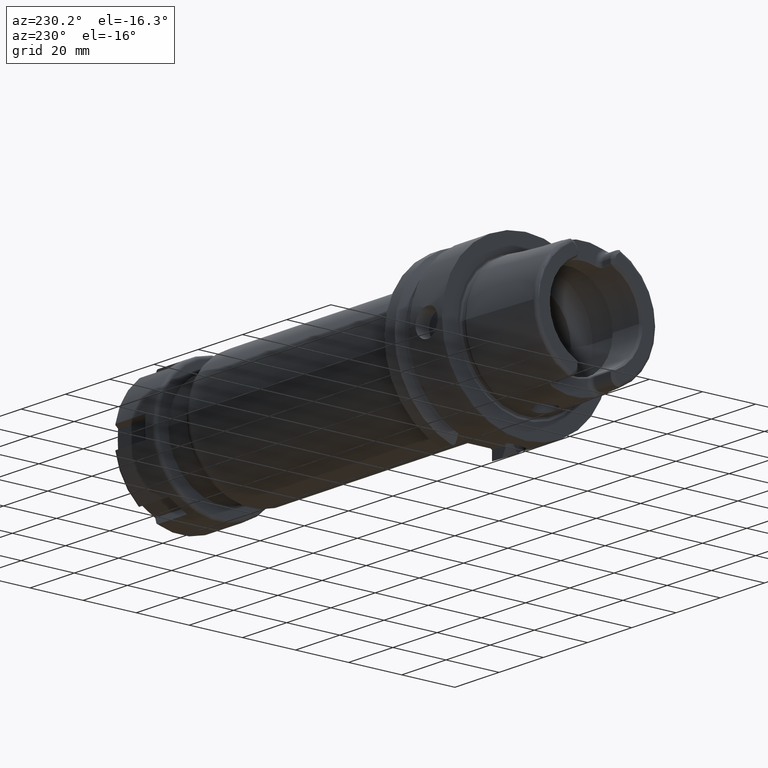
[diagram: clean part render]
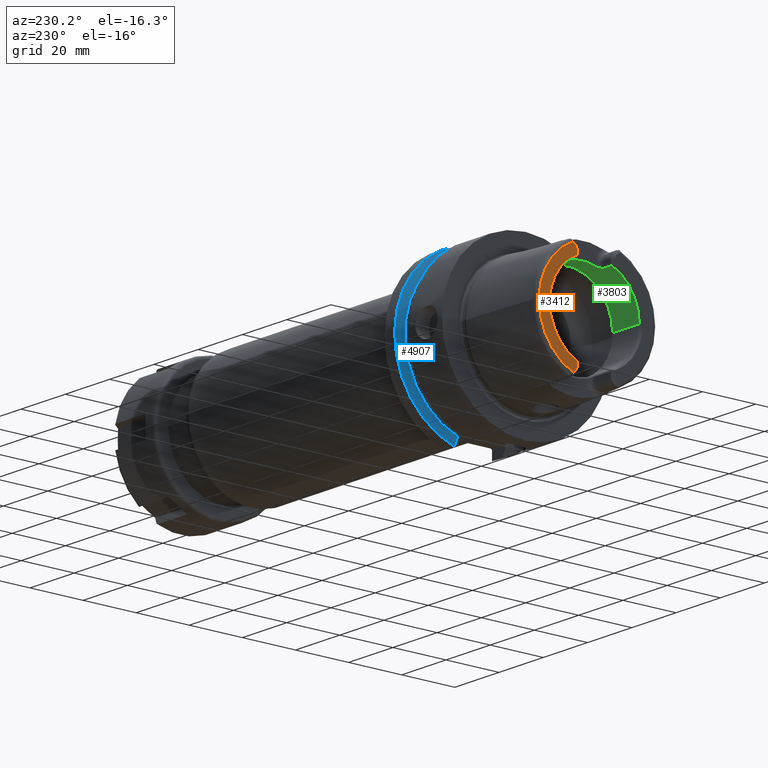
[diagram: same view with three faces highlighted in distinct colors, each labeled with its STEP entity id]
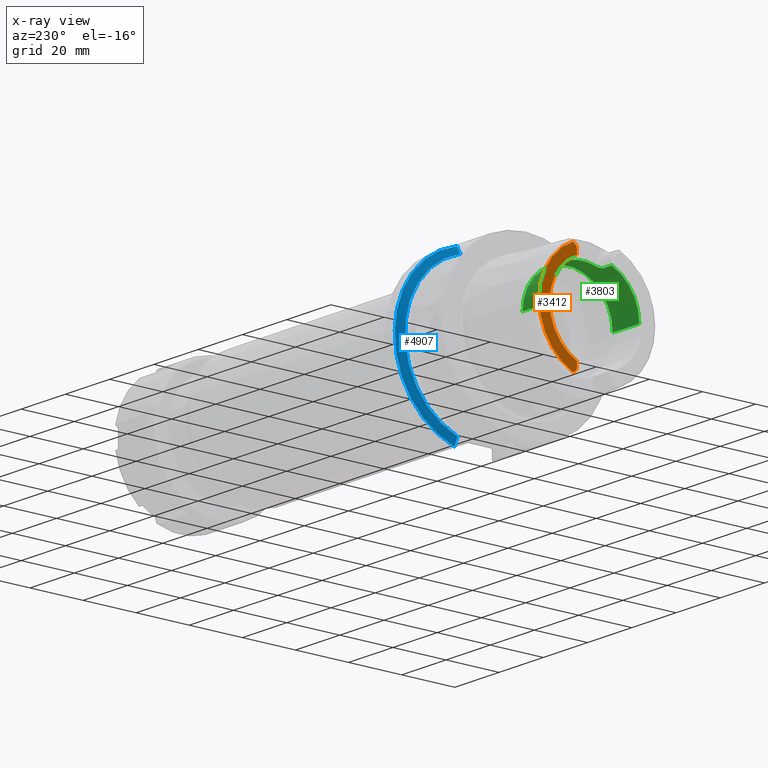
[diagram: x-ray of the same camera — body ghosted, the three highlighted faces saturated]
A machine part, auxiliary view with three faces highlighted in distinct colors.
The next image is the same camera in x-ray (body ghosted, the three faces saturated) — at least one of them is partly hidden behind the body in this view.
Their STEP definitions:

[orange] entity #3412 — the highlighted planar face has unit normal (1, 0, 0).
#215=CARTESIAN_POINT('',(-3.2E1,0.E0,0.E0));
#216=DIRECTION('',(-1.E0,0.E0,0.E0));
#217=DIRECTION('',(0.E0,4.056746540583E-1,9.140175463604E-1));
#218=AXIS2_PLACEMENT_3D('',#215,#216,#217);
#289=DIRECTION('',(0.E0,0.E0,1.E0));
#290=VECTOR('',#289,1.666552168805E0);
#291=CARTESIAN_POINT('',(-3.2E1,7.27E0,-1.767E1));
#292=LINE('',#291,#290);
#293=CARTESIAN_POINT('',(-3.2E1,9.27E0,-1.767E1));
#294=DIRECTION('',(1.E0,0.E0,0.E0));
#295=DIRECTION('',(0.E0,-1.E0,0.E0));
#296=AXIS2_PLACEMENT_3D('',#293,#294,#295);
#298=DIRECTION('',(0.E0,-8.373245684230E-1,5.467061067112E-1));
#299=VECTOR('',#298,6.882400885956E-1);
#300=CARTESIAN_POINT('',(-3.2E1,8.752868121732E0,-1.972091419616E1));
#301=LINE('',#300,#299);
#302=DIRECTION('',(0.E0,-8.373245684230E-1,-5.467061067112E-1));
#303=VECTOR('',#302,6.882400885957E-1);
#304=CARTESIAN_POINT('',(-3.2E1,8.752868121732E0,1.972091419616E1));
#305=LINE('',#304,#303);
#306=CARTESIAN_POINT('',(-3.2E1,9.27E0,1.767E1));
#307=DIRECTION('',(-1.E0,0.E0,0.E0));
#308=DIRECTION('',(0.E0,-1.E0,0.E0));
#309=AXIS2_PLACEMENT_3D('',#306,#307,#308);
#311=DIRECTION('',(0.E0,0.E0,1.E0));
#312=VECTOR('',#311,1.666552168805E0);
#313=CARTESIAN_POINT('',(-3.2E1,7.27E0,1.600344783120E1));
#314=LINE('',#313,#312);
#346=CARTESIAN_POINT('',(-3.2E1,0.E0,0.E0));
#347=DIRECTION('',(1.E0,0.E0,0.E0));
#348=DIRECTION('',(0.E0,4.136004510727E-1,-9.104584926686E-1));
#349=AXIS2_PLACEMENT_3D('',#346,#347,#348);
#2798=CARTESIAN_POINT('',(-3.2E1,7.27E0,1.600344783120E1));
#2799=CARTESIAN_POINT('',(-3.2E1,7.27E0,1.767E1));
#2800=VERTEX_POINT('',#2798);
#2801=VERTEX_POINT('',#2799);
#2802=CARTESIAN_POINT('',(-3.2E1,8.176587786578E0,1.934464913685E1));
#2803=VERTEX_POINT('',#2802);
#2804=CARTESIAN_POINT('',(-3.2E1,8.752868121732E0,1.972091419616E1));
#2805=VERTEX_POINT('',#2804);
#2894=CARTESIAN_POINT('',(-3.2E1,7.27E0,-1.767E1));
#2895=CARTESIAN_POINT('',(-3.2E1,7.27E0,-1.600344783120E1));
#2896=VERTEX_POINT('',#2894);
#2897=VERTEX_POINT('',#2895);
#2898=CARTESIAN_POINT('',(-3.2E1,8.176587786578E0,-1.934464913685E1));
#2899=VERTEX_POINT('',#2898);
#2900=CARTESIAN_POINT('',(-3.2E1,8.752868121732E0,-1.972091419616E1));
#2901=VERTEX_POINT('',#2900);
#3391=CARTESIAN_POINT('',(-3.2E1,0.E0,0.E0));
#3392=DIRECTION('',(1.E0,0.E0,0.E0));
#3393=DIRECTION('',(0.E0,-1.E0,0.E0));
#3394=AXIS2_PLACEMENT_3D('',#3391,#3392,#3393);
#3395=PLANE('',#3394);
#3397=ORIENTED_EDGE('',*,*,#3396,.F.);
#3399=ORIENTED_EDGE('',*,*,#3398,.T.);
#3400=ORIENTED_EDGE('',*,*,#3381,.F.);
#3401=ORIENTED_EDGE('',*,*,#3348,.F.);
#3403=ORIENTED_EDGE('',*,*,#3402,.T.);
#3405=ORIENTED_EDGE('',*,*,#3404,.F.);
#3407=ORIENTED_EDGE('',*,*,#3406,.F.);
#3409=ORIENTED_EDGE('',*,*,#3408,.F.);
#3410=EDGE_LOOP('',(#3397,#3399,#3400,#3401,#3403,#3405,#3407,#3409));
#3411=FACE_OUTER_BOUND('',#3410,.F.);
#3412=ADVANCED_FACE('',(#3411),#3395,.F.);
#219=CIRCLE('',#218,2.157607835286E1);
#297=CIRCLE('',#296,2.E0);
#310=CIRCLE('',#309,2.E0);
#350=CIRCLE('',#349,1.757735026919E1);
#3348=EDGE_CURVE('',#2805,#2901,#219,.T.);
#3381=EDGE_CURVE('',#2901,#2899,#301,.T.);
#3396=EDGE_CURVE('',#2896,#2897,#292,.T.);
#3398=EDGE_CURVE('',#2896,#2899,#297,.T.);
#3402=EDGE_CURVE('',#2805,#2803,#305,.T.);
#3404=EDGE_CURVE('',#2801,#2803,#310,.T.);
#3406=EDGE_CURVE('',#2800,#2801,#314,.T.);
#3408=EDGE_CURVE('',#2897,#2800,#350,.T.);

[blue] entity #4907 — the highlighted conical surface has half-angle 60 deg.
#1601=CARTESIAN_POINT('',(2.137749907476E1,9.0175E0,-3.018169467989E1));
#1602=CARTESIAN_POINT('',(2.120260671566E1,9.0175E0,-2.986554088755E1));
#1603=CARTESIAN_POINT('',(2.085812292499E1,9.0175E0,-2.924200119110E1));
#1604=CARTESIAN_POINT('',(2.035750942268E1,9.0175E0,-2.833337204728E1));
#1605=CARTESIAN_POINT('',(2.003409260855E1,9.0175E0,-2.774465116011E1));
#1606=CARTESIAN_POINT('',(1.9875E1,9.0175E0,-2.745461174016E1));
#1608=CARTESIAN_POINT('',(2.137749907476E1,0.E0,0.E0));
#1609=DIRECTION('',(1.E0,0.E0,0.E0));
#1610=DIRECTION('',(0.E0,2.862698412698E-1,-9.581490374568E-1));
#1611=AXIS2_PLACEMENT_3D('',#1608,#1609,#1610);
#1613=CARTESIAN_POINT('',(1.9875E1,8.0175E0,2.776311772483E1));
#1614=CARTESIAN_POINT('',(2.003456921596E1,8.0175E0,2.805079344433E1));
#1615=CARTESIAN_POINT('',(2.035862308375E1,8.0175E0,2.863431787984E1));
#1616=CARTESIAN_POINT('',(2.085926872163E1,8.0175E0,2.953380309393E1));
#1617=CARTESIAN_POINT('',(2.120309833211E1,8.0175E0,3.015023700722E1));
#1618=CARTESIAN_POINT('',(2.137749907476E1,8.0175E0,3.046259499370E1));
#1620=CARTESIAN_POINT('',(1.9875E1,0.E0,0.E0));
#1621=DIRECTION('',(-1.E0,0.E0,0.E0));
#1622=DIRECTION('',(0.E0,2.774452312278E-1,9.607414551631E-1));
#1623=AXIS2_PLACEMENT_3D('',#1620,#1621,#1622);
#3082=CARTESIAN_POINT('',(1.9875E1,8.0175E0,2.776311772483E1));
#3083=VERTEX_POINT('',#3082);
#3085=VERTEX_POINT('',#1618);
#3106=CARTESIAN_POINT('',(1.9875E1,9.0175E0,-2.745461174016E1));
#3108=VERTEX_POINT('',#3106);
#3114=VERTEX_POINT('',#1601);
#4894=CARTESIAN_POINT('',(2.062624953738E1,0.E0,0.E0));
#4895=DIRECTION('',(1.E0,0.E0,0.E0));
#4896=DIRECTION('',(0.E0,-1.E0,0.E0));
#4897=AXIS2_PLACEMENT_3D('',#4894,#4895,#4896);
#4898=CONICAL_SURFACE('',#4897,3.019879763210E1,6.E1);
#4899=ORIENTED_EDGE('',*,*,#4607,.F.);
#4901=ORIENTED_EDGE('',*,*,#4900,.T.);
#4903=ORIENTED_EDGE('',*,*,#4902,.F.);
#4904=ORIENTED_EDGE('',*,*,#4857,.T.);
#4905=EDGE_LOOP('',(#4899,#4901,#4903,#4904));
#4906=FACE_OUTER_BOUND('',#4905,.F.);
#4907=ADVANCED_FACE('',(#4906),#4898,.T.);
#1607=B_SPLINE_CURVE_WITH_KNOTS('',3,(#1601,#1602,#1603,#1604,#1605,#1606),
.UNSPECIFIED.,.F.,.F.,(4,1,1,4),(0.E0,3.333333333333E-1,6.666666666667E-1,1.E0),
.UNSPECIFIED.);
#1612=CIRCLE('',#1611,3.15E1);
#1619=B_SPLINE_CURVE_WITH_KNOTS('',3,(#1613,#1614,#1615,#1616,#1617,#1618),
.UNSPECIFIED.,.F.,.F.,(4,1,1,4),(0.E0,3.333333333333E-1,6.666666666667E-1,1.E0),
.UNSPECIFIED.);
#1624=CIRCLE('',#1623,2.889759526419E1);
#4607=EDGE_CURVE('',#3114,#3108,#1607,.T.);
#4857=EDGE_CURVE('',#3083,#3108,#1624,.T.);
#4900=EDGE_CURVE('',#3114,#3085,#1612,.T.);
#4902=EDGE_CURVE('',#3083,#3085,#1619,.T.);

[green] entity #3803 — the highlighted cylindrical surface (partial cylindrical patch) has radius 17 mm, axis along (1, 0, 0).
#362=CARTESIAN_POINT('',(-3.1E1,0.E0,0.E0));
#363=DIRECTION('',(1.E0,0.E0,0.E0));
#364=DIRECTION('',(0.E0,1.E0,0.E0));
#365=AXIS2_PLACEMENT_3D('',#362,#363,#364);
#394=CARTESIAN_POINT('',(-3.1E1,0.E0,0.E0));
#395=DIRECTION('',(1.E0,0.E0,0.E0));
#396=DIRECTION('',(0.E0,-3.910839598454E-1,9.203550056102E-1));
#397=AXIS2_PLACEMENT_3D('',#394,#395,#396);
#559=DIRECTION('',(1.E0,0.E0,0.E0));
#560=VECTOR('',#559,3.5E0);
#561=CARTESIAN_POINT('',(-3.1E1,6.648427317371E0,1.564603509537E1));
#562=LINE('',#561,#560);
#563=CARTESIAN_POINT('',(-2.571132486541E1,4.77E0,1.631708000838E1));
#564=CARTESIAN_POINT('',(-2.570911463045E1,4.851899929325E0,1.629313806150E1));
#565=CARTESIAN_POINT('',(-2.571539985496E1,5.014300274441E0,1.624433189365E1));
#566=CARTESIAN_POINT('',(-2.575723226820E1,5.255574737127E0,1.616786516493E1));
#567=CARTESIAN_POINT('',(-2.583019759937E1,5.488813832187E0,1.609012650164E1));
#568=CARTESIAN_POINT('',(-2.593222755914E1,5.709311810621E0,1.601314455534E1));
#569=CARTESIAN_POINT('',(-2.606208908479E1,5.913640570765E0,1.593873381343E1));
#570=CARTESIAN_POINT('',(-2.621579663552E1,6.097621457296E0,1.586916363348E1));
#571=CARTESIAN_POINT('',(-2.639004084082E1,6.257927374534E0,1.580654307494E1));
#572=CARTESIAN_POINT('',(-2.658287946713E1,6.394281114327E0,1.575179653388E1));
#573=CARTESIAN_POINT('',(-2.679414325254E1,6.504885265694E0,1.570637036291E1));
#574=CARTESIAN_POINT('',(-2.702072491693E1,6.586740689310E0,1.567215753589E1));
#575=CARTESIAN_POINT('',(-2.725841410654E1,6.637201205541E0,1.565081274977E1));
#576=CARTESIAN_POINT('',(-2.741884128981E1,6.648427317371E0,1.564603509537E1));
#577=CARTESIAN_POINT('',(-2.75E1,6.648427317371E0,1.564603509537E1));
#579=CARTESIAN_POINT('',(-2.571132486541E1,-4.77E0,1.631708000838E1));
#580=CARTESIAN_POINT('',(-2.571132486541E1,-4.151241293882E0,1.649796280277E1));
#581=CARTESIAN_POINT('',(-2.571132889067E1,-2.893125957956E0,1.678926713017E1));
#582=CARTESIAN_POINT('',(-2.571132738120E1,-9.685489423330E-1,
1.700915920873E1));
#583=CARTESIAN_POINT('',(-2.571132738120E1,9.685489423332E-1,1.700915920873E1));
#584=CARTESIAN_POINT('',(-2.571132889067E1,2.893125957955E0,1.678926713017E1));
#585=CARTESIAN_POINT('',(-2.571132486541E1,4.151241293884E0,1.649796280277E1));
#586=CARTESIAN_POINT('',(-2.571132486541E1,4.77E0,1.631708000838E1));
#588=CARTESIAN_POINT('',(-2.75E1,-6.648427317371E0,1.564603509537E1));
#589=CARTESIAN_POINT('',(-2.741886739757E1,-6.648427317371E0,1.564603509537E1));
#590=CARTESIAN_POINT('',(-2.725846026145E1,-6.637216591931E0,1.565080624648E1));
#591=CARTESIAN_POINT('',(-2.702047669465E1,-6.586680175792E0,1.567218311946E1));
#592=CARTESIAN_POINT('',(-2.679396033382E1,-6.504789416100E0,1.570640995358E1));
#593=CARTESIAN_POINT('',(-2.658322850975E1,-6.394447887183E0,1.575172726773E1));
#594=CARTESIAN_POINT('',(-2.639118887217E1,-6.258799446744E0,1.580619508840E1));
#595=CARTESIAN_POINT('',(-2.621738949273E1,-6.099242016698E0,1.586853752436E1));
#596=CARTESIAN_POINT('',(-2.606384631874E1,-5.916012648986E0,1.593785105703E1));
#597=CARTESIAN_POINT('',(-2.593366664869E1,-5.711955003317E0,1.601220141386E1));
#598=CARTESIAN_POINT('',(-2.583107108488E1,-5.491206341112E0,1.608931480424E1));
#599=CARTESIAN_POINT('',(-2.575746962839E1,-5.256749499660E0,1.616748882623E1));
#600=CARTESIAN_POINT('',(-2.571543732099E1,-5.014873021211E0,1.624415783103E1));
#601=CARTESIAN_POINT('',(-2.570911008721E1,-4.852068278437E0,1.629308884771E1));
#602=CARTESIAN_POINT('',(-2.571132486541E1,-4.77E0,1.631708000838E1));
#604=DIRECTION('',(1.E0,0.E0,0.E0));
#605=VECTOR('',#604,3.5E0);
#606=CARTESIAN_POINT('',(-3.1E1,-6.648427317371E0,1.564603509537E1));
#607=LINE('',#606,#605);
#608=CARTESIAN_POINT('',(-1.899602540378E1,0.E0,0.E0));
#609=DIRECTION('',(1.E0,0.E0,0.E0));
#610=DIRECTION('',(0.E0,1.E0,0.E0));
#611=AXIS2_PLACEMENT_3D('',#608,#609,#610);
#666=DIRECTION('',(-1.E0,0.E0,0.E0));
#667=VECTOR('',#666,1.200397459622E1);
#668=CARTESIAN_POINT('',(-1.899602540378E1,1.7E1,0.E0));
#669=LINE('',#668,#667);
#675=DIRECTION('',(-1.E0,0.E0,0.E0));
#676=VECTOR('',#675,1.200397459622E1);
#677=CARTESIAN_POINT('',(-1.899602540378E1,-1.7E1,0.E0));
#678=LINE('',#677,#676);
#2755=CARTESIAN_POINT('',(-1.899602540378E1,1.7E1,0.E0));
#2756=VERTEX_POINT('',#2755);
#2757=CARTESIAN_POINT('',(-3.1E1,1.7E1,0.E0));
#2758=VERTEX_POINT('',#2757);
#2767=CARTESIAN_POINT('',(-1.899602540378E1,-1.7E1,0.E0));
#2768=VERTEX_POINT('',#2767);
#2769=CARTESIAN_POINT('',(-3.1E1,-1.7E1,0.E0));
#2770=VERTEX_POINT('',#2769);
#2836=CARTESIAN_POINT('',(-2.75E1,6.648427317371E0,1.564603509537E1));
#2837=VERTEX_POINT('',#2836);
#2838=CARTESIAN_POINT('',(-2.571132486541E1,4.77E0,1.631708000838E1));
#2839=VERTEX_POINT('',#2838);
#2840=CARTESIAN_POINT('',(-2.75E1,-6.648427317371E0,1.564603509537E1));
#2841=VERTEX_POINT('',#2840);
#2842=CARTESIAN_POINT('',(-2.571132486541E1,-4.77E0,1.631708000838E1));
#2843=VERTEX_POINT('',#2842);
#2848=CARTESIAN_POINT('',(-3.1E1,6.648427317371E0,1.564603509537E1));
#2849=VERTEX_POINT('',#2848);
#2850=CARTESIAN_POINT('',(-3.1E1,-6.648427317371E0,1.564603509537E1));
#2851=VERTEX_POINT('',#2850);
#3782=CARTESIAN_POINT('',(-3.41E1,0.E0,0.E0));
#3783=DIRECTION('',(1.E0,0.E0,0.E0));
#3784=DIRECTION('',(0.E0,-1.E0,0.E0));
#3785=AXIS2_PLACEMENT_3D('',#3782,#3783,#3784);
#3786=CYLINDRICAL_SURFACE('',#3785,1.7E1);
#3787=ORIENTED_EDGE('',*,*,#3519,.T.);
#3789=ORIENTED_EDGE('',*,*,#3788,.F.);
#3790=ORIENTED_EDGE('',*,*,#3667,.F.);
#3791=ORIENTED_EDGE('',*,*,#3722,.F.);
#3792=ORIENTED_EDGE('',*,*,#3737,.F.);
#3793=ORIENTED_EDGE('',*,*,#3484,.T.);
#3795=ORIENTED_EDGE('',*,*,#3794,.F.);
#3797=ORIENTED_EDGE('',*,*,#3796,.F.);
#3799=ORIENTED_EDGE('',*,*,#3798,.T.);
#3800=ORIENTED_EDGE('',*,*,#3464,.T.);
#3801=EDGE_LOOP('',(#3787,#3789,#3790,#3791,#3792,#3793,#3795,#3797,#3799,
#3800));
#3802=FACE_OUTER_BOUND('',#3801,.F.);
#3803=ADVANCED_FACE('',(#3802),#3786,.F.);
#366=CIRCLE('',#365,1.7E1);
#398=CIRCLE('',#397,1.7E1);
#578=B_SPLINE_CURVE_WITH_KNOTS('',3,(#563,#564,#565,#566,#567,#568,#569,#570,
#571,#572,#573,#574,#575,#576,#577),.UNSPECIFIED.,.F.,.F.,(4,1,1,1,1,1,1,1,1,1,
1,1,4),(0.E0,8.333333333333E-2,1.666666666667E-1,2.5E-1,3.333333333333E-1,
4.166666666667E-1,5.E-1,5.833333333333E-1,6.666666666667E-1,7.5E-1,
8.333333333333E-1,9.166666666667E-1,1.E0),.UNSPECIFIED.);
#587=B_SPLINE_CURVE_WITH_KNOTS('',3,(#579,#580,#581,#582,#583,#584,#585,#586),
.UNSPECIFIED.,.F.,.F.,(4,1,1,1,1,4),(0.E0,2.E-1,4.E-1,6.E-1,8.E-1,1.E0),
.UNSPECIFIED.);
#603=B_SPLINE_CURVE_WITH_KNOTS('',3,(#588,#589,#590,#591,#592,#593,#594,#595,
#596,#597,#598,#599,#600,#601,#602),.UNSPECIFIED.,.F.,.F.,(4,1,1,1,1,1,1,1,1,1,
1,1,4),(0.E0,8.333333333333E-2,1.666666666667E-1,2.5E-1,3.333333333333E-1,
4.166666666667E-1,5.E-1,5.833333333333E-1,6.666666666667E-1,7.5E-1,
8.333333333333E-1,9.166666666667E-1,1.E0),.UNSPECIFIED.);
#612=CIRCLE('',#611,1.7E1);
#3464=EDGE_CURVE('',#2758,#2849,#366,.T.);
#3484=EDGE_CURVE('',#2851,#2770,#398,.T.);
#3519=EDGE_CURVE('',#2849,#2837,#562,.T.);
#3667=EDGE_CURVE('',#2843,#2839,#587,.T.);
#3722=EDGE_CURVE('',#2841,#2843,#603,.T.);
#3737=EDGE_CURVE('',#2851,#2841,#607,.T.);
#3788=EDGE_CURVE('',#2839,#2837,#578,.T.);
#3794=EDGE_CURVE('',#2768,#2770,#678,.T.);
#3796=EDGE_CURVE('',#2756,#2768,#612,.T.);
#3798=EDGE_CURVE('',#2756,#2758,#669,.T.);